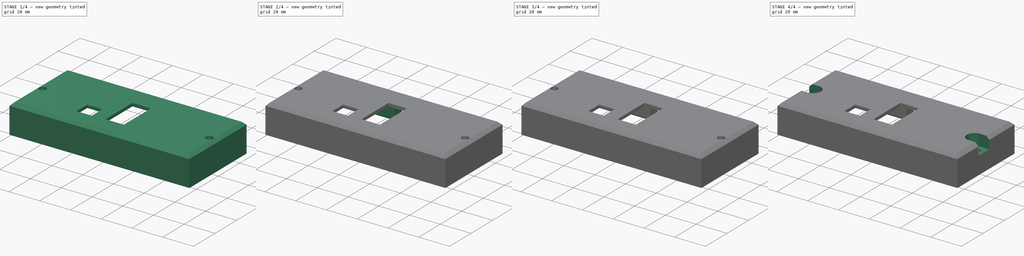
[diagram: build sequence overview — one tinted view per stage of 4, left to right]
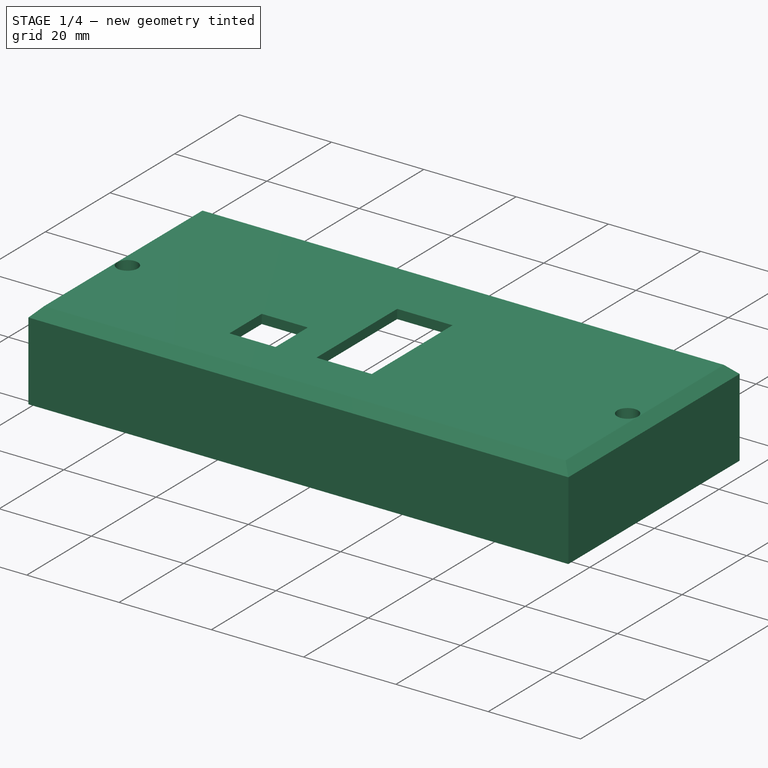
[diagram: stage 1 of 4 — iso view after this stage's code; geometry added in this stage tinted green]
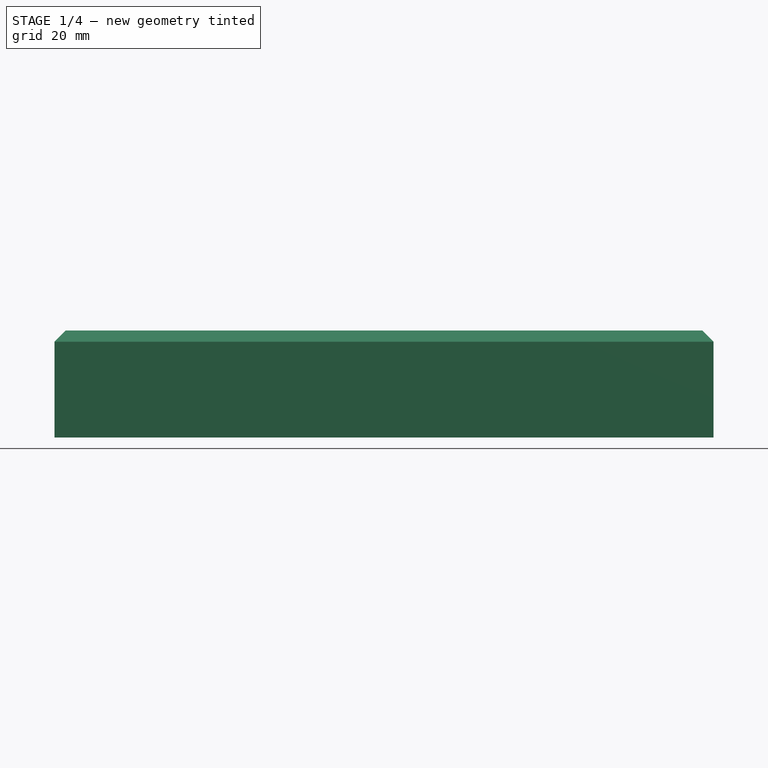
[diagram: stage 1 of 4 — front view after this stage's code; geometry added in this stage tinted green]
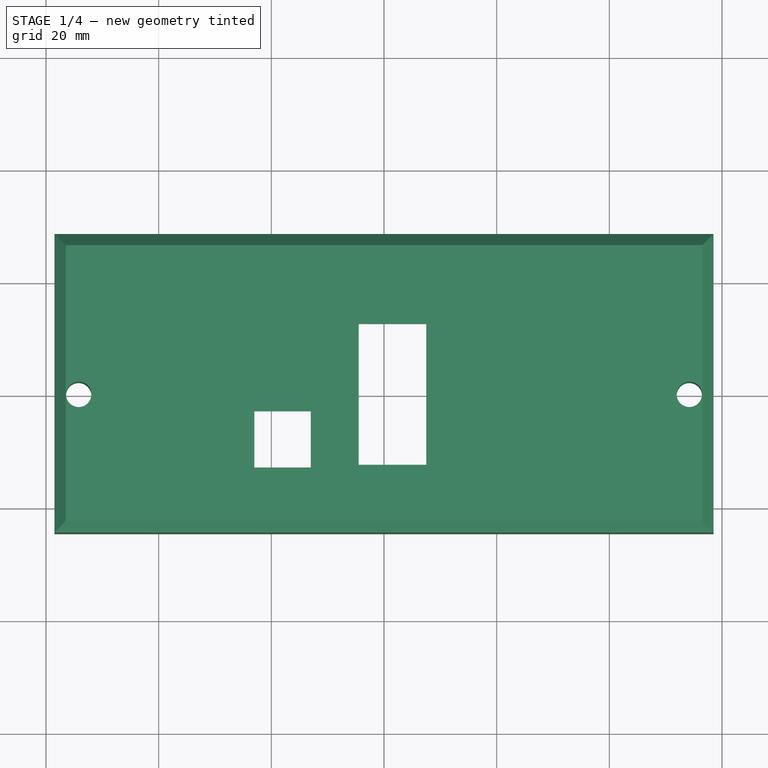
[diagram: stage 1 of 4 — top view after this stage's code; geometry added in this stage tinted green]
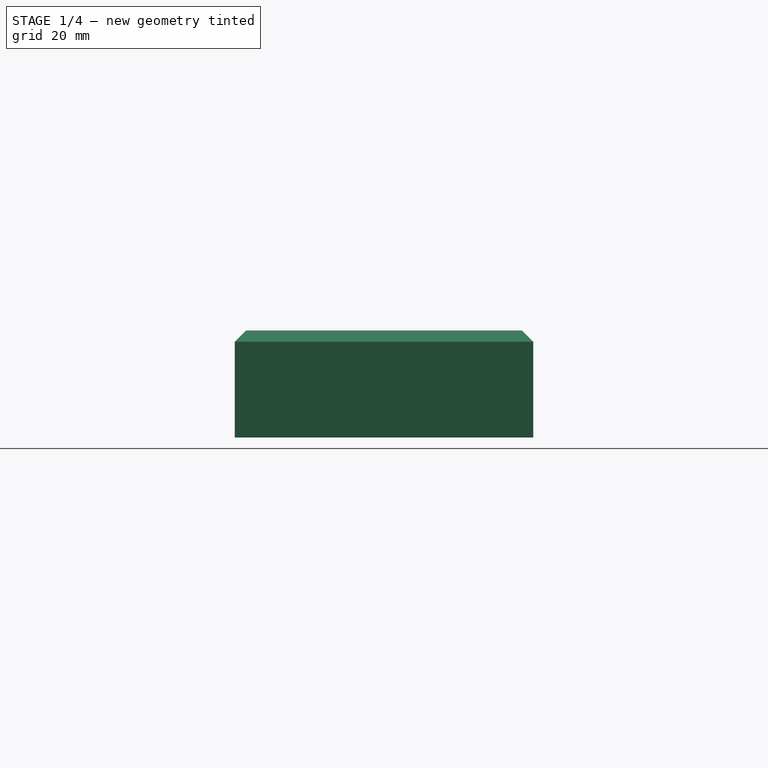
[diagram: stage 1 of 4 — right view after this stage's code; geometry added in this stage tinted green]
FCSTD DOCUMENT  (FreeCAD 0.18.4R)
Label: Domodisp - supporto
License: CreativeCommons Attribution-NonCommercial-ShareAlike
LicenseURL: http://creativecommons.org/licenses/by-nc-sa/4.0/
objects: Sketcher::SketchObject×10, PartDesign::Pad×6, PartDesign::Chamfer×5, PartDesign::Pocket×2, PartDesign::Hole×1, PartDesign::Body×1
note: 34 computed .brp shape members not serialized (recipe doc carries the construction recipe); baked Part::Feature solids carry a one-line shape summary decoded from their .brp

FEATURE [Sketcher::SketchObject] CopySketch  label="Fondo"
  sketch-geometry (14):
    g0: LineSegment StartX=-58.5 StartY=28.5 StartZ=0 EndX=58.5 EndY=28.5 EndZ=0
    g1: LineSegment StartX=58.5 StartY=28.5 StartZ=0 EndX=58.5 EndY=-24.5 EndZ=0
    g2: LineSegment StartX=58.5 StartY=-24.5 StartZ=0 EndX=-58.5 EndY=-24.5 EndZ=0
    g3: LineSegment StartX=-58.5 StartY=-24.5 StartZ=0 EndX=-58.5 EndY=28.5 EndZ=0
    g4: Circle CenterX=-54.2 CenterY=0 CenterZ=0 NormalX=0 NormalY=0 NormalZ=1 AngleXU=0 Radius=2.25
    g5: Circle CenterX=54.2 CenterY=0 CenterZ=0 NormalX=0 NormalY=0 NormalZ=1 AngleXU=0 Radius=2.25
    g6: LineSegment StartX=-4.5 StartY=12.5 StartZ=0 EndX=7.5 EndY=12.5 EndZ=0
    g7: LineSegment StartX=7.5 StartY=12.5 StartZ=0 EndX=7.5 EndY=-12.5 EndZ=0
    g8: LineSegment StartX=7.5 StartY=-12.5 StartZ=0 EndX=-4.5 EndY=-12.5 EndZ=0
    g9: LineSegment StartX=-4.5 StartY=-12.5 StartZ=0 EndX=-4.5 EndY=12.5 EndZ=0
    g10: LineSegment StartX=-23 StartY=-3 StartZ=0 EndX=-13 EndY=-3 EndZ=0
    g11: LineSegment StartX=-13 StartY=-3 StartZ=0 EndX=-13 EndY=-13 EndZ=0
    g12: LineSegment StartX=-13 StartY=-13 StartZ=0 EndX=-23 EndY=-13 EndZ=0
    g13: LineSegment StartX=-23 StartY=-13 StartZ=0 EndX=-23 EndY=-3 EndZ=0
  constraints (39):
    c: Coincident(g0,g1)
    c: Coincident(g1,g2)
    c: Coincident(g2,g3)
    c: Coincident(g3,g0)
    c: Horizontal(g2)
    c: Vertical(g1)
    c: Vertical(g3)
    c: DistanceX(g0,g0) = 117  'Larghezza'
    c: DistanceY(g1,g1) = 53  'Altezza'
    c: PointOnObject(g4,g-1)
    c: Symmetric(g5,g4,g-1)
    c: Equal(g5,g4)
    c: Diameter(g5) = 4.5
    c: Coincident(g6,g7)
    c: Coincident(g7,g8)
    c: Coincident(g8,g9)
    c: Coincident(g9,g6)
    c: Horizontal(g6)
    c: Horizontal(g8)
    c: Vertical(g9)
    c: DistanceY(g7,g7) = 25
    c: DistanceX(g6,g6) = 12
    c: DistanceX(g4,g5) = 108.4  'InterasseFori'
    c: Coincident(g10,g11)
    c: Coincident(g11,g12)
    c: Coincident(g12,g13)
    c: Coincident(g13,g10)
    c: Horizontal(g10)
    c: Horizontal(g12)
    c: Vertical(g11)
    c: Vertical(g13)
    c: DistanceX(g11,g-1) = 13
    c: DistanceY(g13,g13) = 10
    c: DistanceX(g12,g12) = 10
    c: DistanceY(g1,g-1) = 24.5  'OffsetBordoChiuso'
    c: Symmetric(g0,g0,g-2)
    c: Symmetric(g6,g7,g-1)
    c: DistanceX(g-1,g7) = 7.5
    c: DistanceY(g10,g-1) = 3
FEATURE [PartDesign::Pad] Pad  label="PadFondo"
  Length = 19
  Length2 = 100
  Profile = -> CopySketch
  Refine = true
  Type = 0
FEATURE [Sketcher::SketchObject] Sketch
  MapMode = 5
  Placement = pos=(0,0,0) rot=(1,0,0;3.14159rad)
  Support = -> [Pad]
  sketch-geometry (9):
    g0: LineSegment StartX=-51 StartY=22.5 StartZ=0 EndX=39 EndY=22.5 EndZ=0
    g1: LineSegment [constr] StartX=39 StartY=22.5 StartZ=0 EndX=39 EndY=-30.5 EndZ=0
    g2: LineSegment StartX=39 StartY=-30.5 StartZ=0 EndX=-51 EndY=-30.5 EndZ=0
    g3: LineSegment StartX=-51 StartY=-30.5 StartZ=0 EndX=-51 EndY=22.5 EndZ=0
    g4: LineSegment StartX=39 StartY=22.5 StartZ=0 EndX=39 EndY=3 EndZ=0
    g5: LineSegment StartX=39 StartY=3 StartZ=0 EndX=41.5 EndY=3 EndZ=0
    g6: LineSegment StartX=41.5 StartY=-17 StartZ=0 EndX=39 EndY=-17 EndZ=0
    g7: LineSegment StartX=39 StartY=-17 StartZ=0 EndX=39 EndY=-30.5 EndZ=0
    g8: LineSegment StartX=41.5 StartY=3 StartZ=0 EndX=41.5 EndY=-17 EndZ=0
  constraints (26):
    c: Coincident(g0,g1)
    c: Coincident(g1,g2)
    c: Coincident(g2,g3)
    c: Coincident(g3,g0)
    c: Horizontal(g0)
    c: Horizontal(g2)
    c: Vertical(g1)
    c: Vertical(g3)
    c: DistanceX(g0,g0) = 90
    c: DistanceY(g1,g1) = 53
    c: DistanceY(g-1,g0) = 22.5
    c: DistanceX(g-1,g0) = 39
    c: Coincident(g0,g4)
    c: PointOnObject(g4,g1)
    c: Coincident(g4,g5)
    c: Horizontal(g5)
    c: PointOnObject(g6,g1)
    c: Horizontal(g6)
    c: Coincident(g6,g7)
    c: Coincident(g7,g2)
    c: Equal(g5,g6)
    c: Coincident(g8,g5)
    c: Coincident(g8,g6)
    c: DistanceX(g6,g6) = 2.5
    c: DistanceY(g8,g8) = 20
    c: DistanceY(g-1,g4) = 3
FEATURE [PartDesign::Chamfer] Chamfer001
  Base = -> Pad [Edge10,Edge7,Edge4,Edge12]
  BaseFeature = -> Pad
  Size = 2
FEATURE [PartDesign::Pocket] Pocket  label="Incastro"
  BaseFeature = -> Chamfer001
  Length = 17
  Length2 = 100
  Profile = -> Sketch
  Refine = true
  Type = 0
FEATURE [Sketcher::SketchObject] Sketch001
  MapMode = 5
  Placement = pos=(0,0,0) rot=(1,0,0;3.14159rad)
  Support = -> [Pocket]
  sketch-geometry (2):
    g0: Circle CenterX=-54.2 CenterY=0 CenterZ=0 NormalX=0 NormalY=0 NormalZ=1 AngleXU=0 Radius=4
    g1: Circle CenterX=54.2 CenterY=0 CenterZ=0 NormalX=0 NormalY=0 NormalZ=1 AngleXU=0 Radius=4
  constraints (5):
    c: PointOnObject(g0,g-1)
    c: Symmetric(g0,g1,g-1)
    c: DistanceX(g0,g1) = 108.4
    c: Equal(g1,g0)
    c: Diameter(g1) = 8
FEATURE [PartDesign::Hole] Hole  label="Scassi teste viti"
  BaseFeature = -> Pocket
  Depth = 5
  DepthType = 0
  Diameter = 8
  DrillPoint = 1
  DrillPointAngle = 118
  HoleCutCountersinkAngle = 90
  HoleCutDepth = 0
  HoleCutDiameter = 0
  HoleCutType = 0
  ModelActualThread = false
  Profile = -> Sketch001
  Refine = true
  Tapered = false
  TaperedAngle = 90
  ThreadAngle = 0
  ThreadClass = 0
  ThreadCutOffInner = 0
  ThreadCutOffOuter = 0
  ThreadDirection = 0
  ThreadFit = 0
  ThreadPitch = 0
  ThreadSize = 0
  ThreadType = 0
  Threaded = false
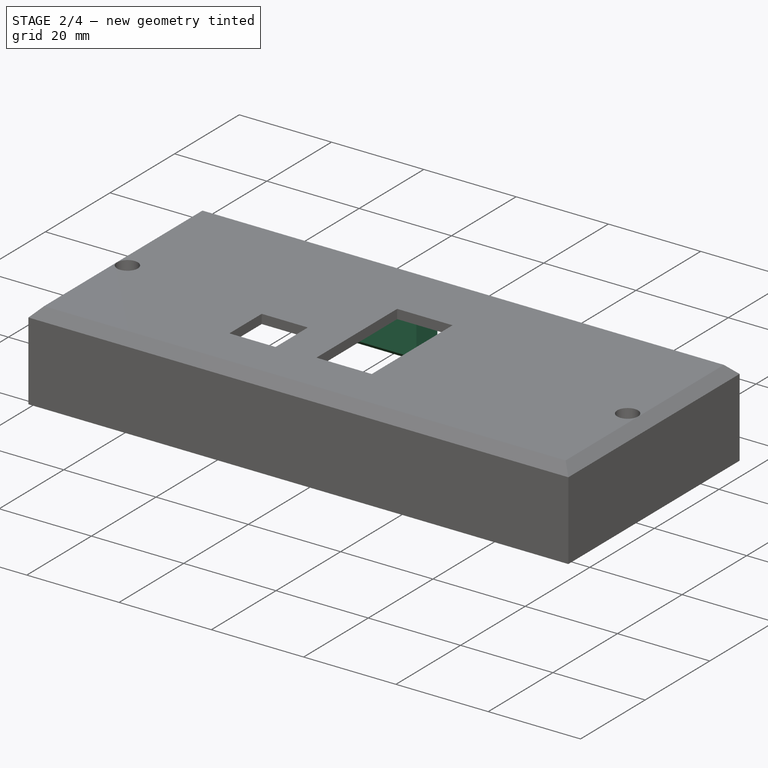
[diagram: stage 2 of 4 — iso view after this stage's code; geometry added in this stage tinted green]
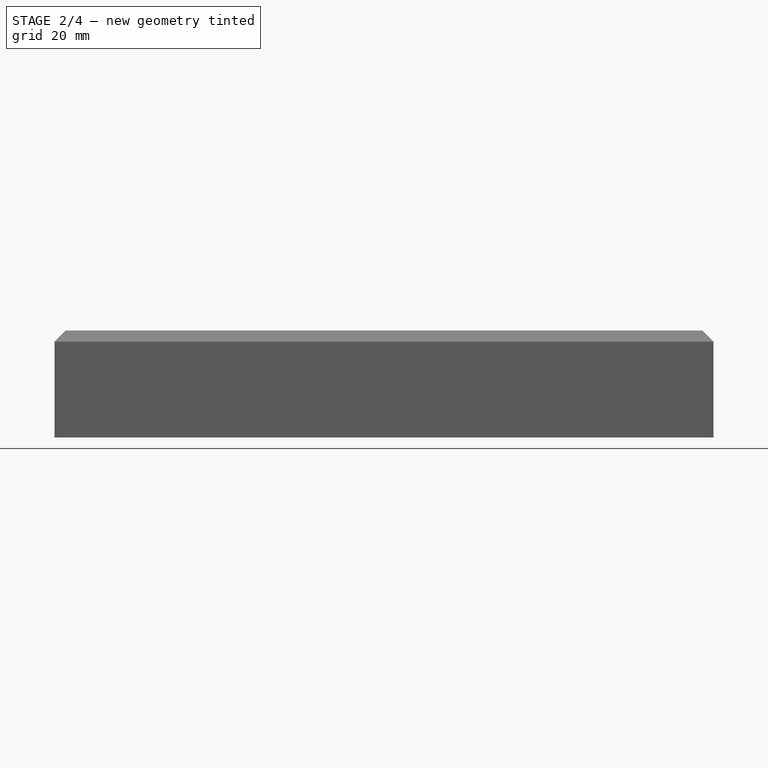
[diagram: stage 2 of 4 — front view after this stage's code; geometry added in this stage tinted green]
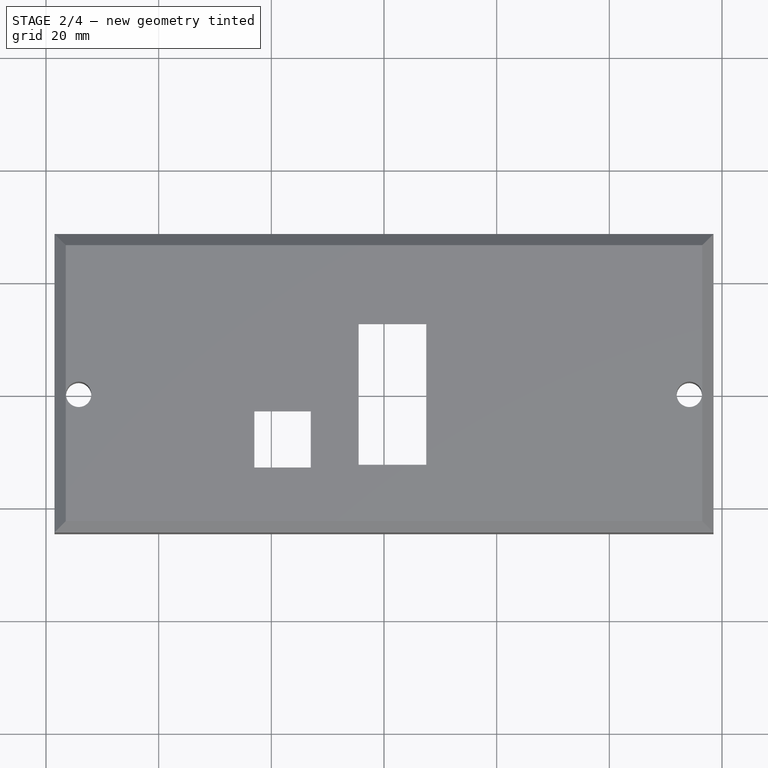
[diagram: stage 2 of 4 — top view after this stage's code; geometry added in this stage tinted green]
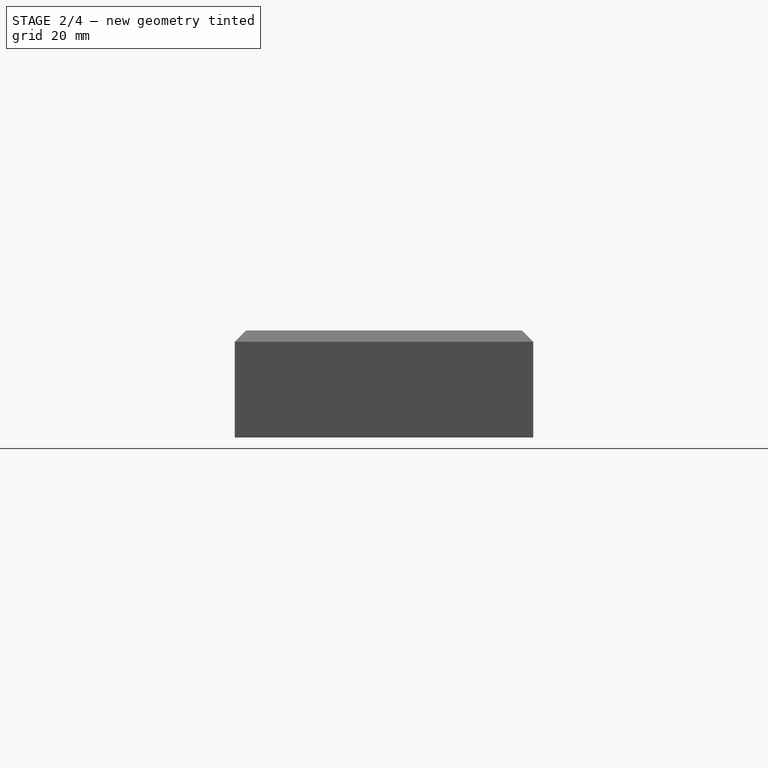
[diagram: stage 2 of 4 — right view after this stage's code; geometry added in this stage tinted green]
FEATURE [Sketcher::SketchObject] Sketch002
  MapMode = 5
  Placement = pos=(0,0,17) rot=(1,0,0;3.14159rad)
  Support = -> [Hole]
  sketch-geometry (4):
    g0: LineSegment StartX=-24 StartY=-22 StartZ=0 EndX=-7 EndY=-22 EndZ=0
    g1: LineSegment StartX=-7 StartY=-22 StartZ=0 EndX=-7 EndY=-28.5 EndZ=0
    g2: LineSegment StartX=-7 StartY=-28.5 StartZ=0 EndX=-24 EndY=-28.5 EndZ=0
    g3: LineSegment StartX=-24 StartY=-28.5 StartZ=0 EndX=-24 EndY=-22 EndZ=0
  constraints (12):
    c: Coincident(g0,g1)
    c: Coincident(g1,g2)
    c: Coincident(g2,g3)
    c: Coincident(g3,g0)
    c: Horizontal(g0)
    c: Horizontal(g2)
    c: Vertical(g1)
    c: Vertical(g3)
    c: DistanceX(g1,g-1) = 7
    c: DistanceY(g1,g-1) = 28.5
    c: DistanceY(g3,g3) = 6.5
    c: DistanceX(g2,g2) = 17
FEATURE [PartDesign::Pad] Pad001  label="Fermo TH"
  BaseFeature = -> Hole
  Length = 13
  Length2 = 100
  Profile = -> Sketch002
  Refine = true
  Type = 0
FEATURE [PartDesign::Chamfer] Chamfer  label="Smussi fermo TH"
  Base = -> Pad001 [Face36]
  BaseFeature = -> Pad001
  Size = 1
FEATURE [Sketcher::SketchObject] Sketch003
  MapMode = 5
  Placement = pos=(0,0,0) rot=(1,0,0;3.14159rad)
  Support = -> [Chamfer]
  sketch-geometry (6):
    g0: LineSegment StartX=39 StartY=-16 StartZ=0 EndX=40.5 EndY=-16 EndZ=0
    g1: LineSegment StartX=40.5 StartY=2 StartZ=0 EndX=39 EndY=2 EndZ=0
    g2: GeomPoint X=39 Y=-7 Z=0
    g3: LineSegment StartX=39 StartY=2 StartZ=0 EndX=39 EndY=-7 EndZ=0
    g4: LineSegment StartX=39 StartY=-7 StartZ=0 EndX=39 EndY=-16 EndZ=0
    g5: LineSegment StartX=40.5 StartY=-16 StartZ=0 EndX=40.5 EndY=2 EndZ=0
  constraints (16):
    c: Horizontal(g0)
    c: DistanceY(g0,g1) = 18
    c: DistanceY(g2,g-1) = 7
    c: DistanceX(g1,g1) = 1.5
    c: Coincident(g3,g2)
    c: Vertical(g3)
    c: Coincident(g4,g2)
    c: Coincident(g4,g0)
    c: Vertical(g4)
    c: Coincident(g5,g0)
    c: Coincident(g5,g1)
    c: Vertical(g5)
    c: Coincident(g1,g3)
    c: DistanceX(g-1,g1) = 39
    c: Equal(g3,g4)
    c: Horizontal(g1)
FEATURE [PartDesign::Pad] Pad002  label="Molla incastro"
  BaseFeature = -> Chamfer
  Length = 17
  Length2 = 8
  Profile = -> Sketch003
  Refine = true
  Reversed = true
  Type = 0
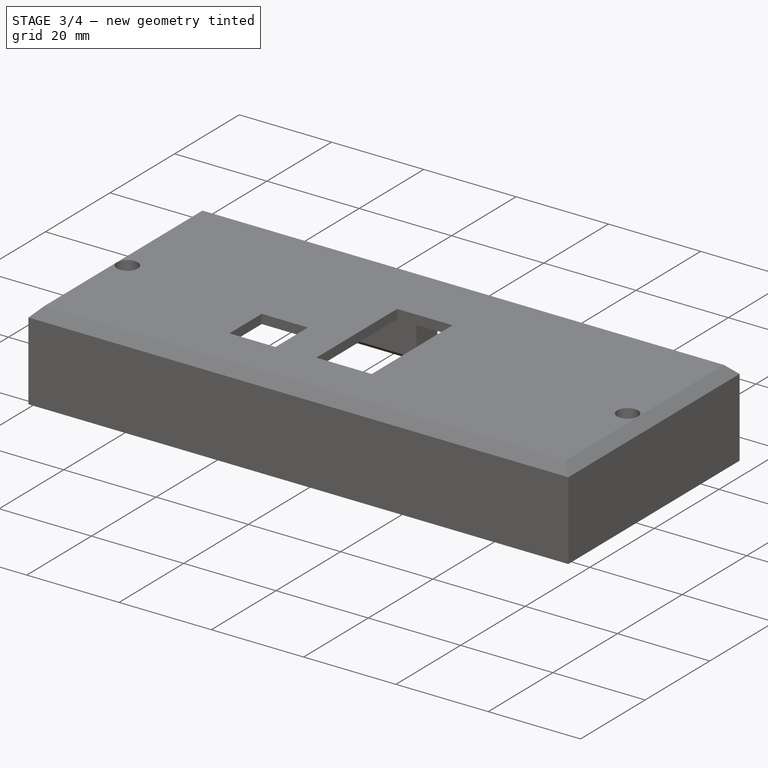
[diagram: stage 3 of 4 — iso view after this stage's code; geometry added in this stage tinted green]
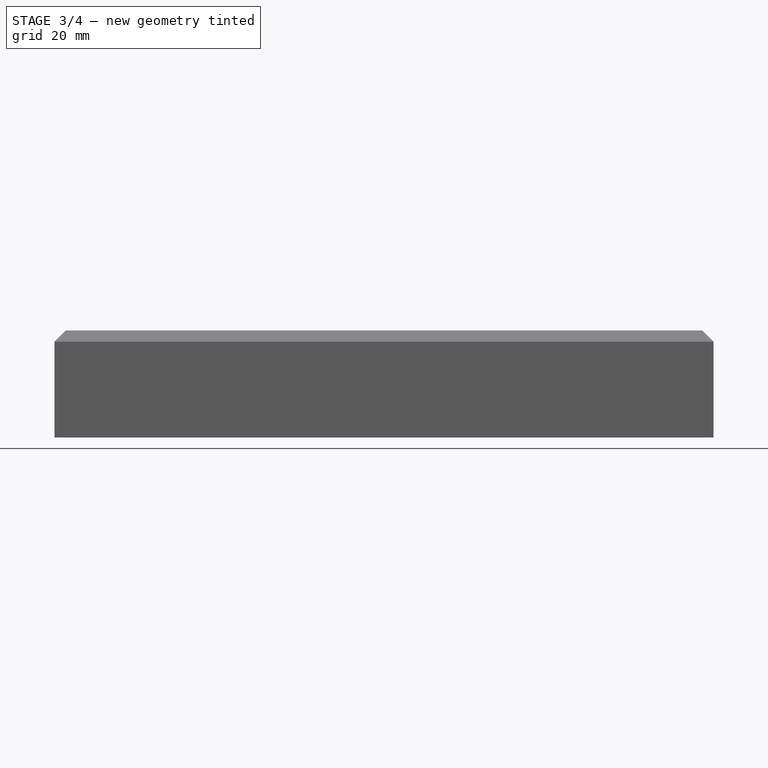
[diagram: stage 3 of 4 — front view after this stage's code; geometry added in this stage tinted green]
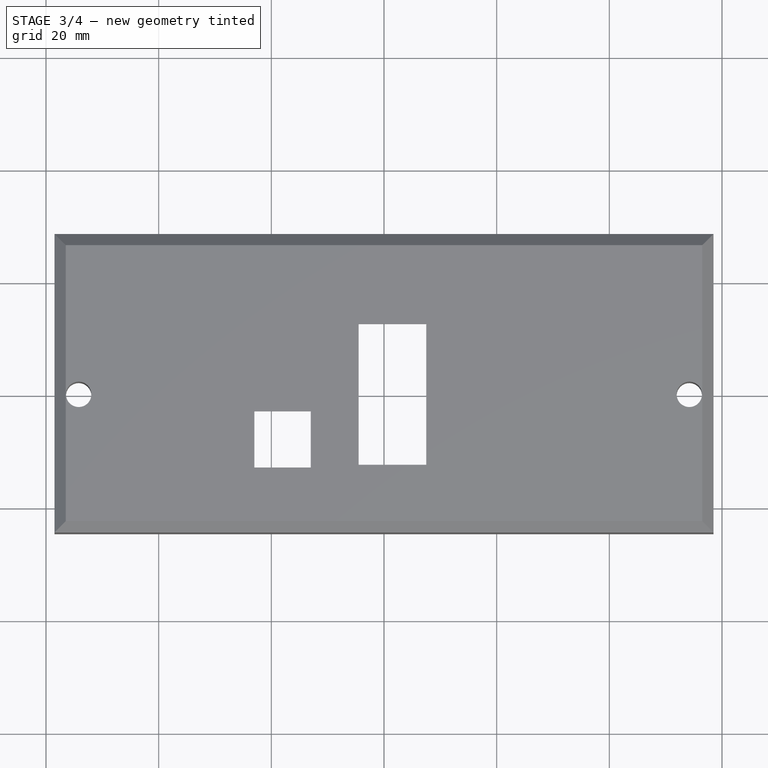
[diagram: stage 3 of 4 — top view after this stage's code; geometry added in this stage tinted green]
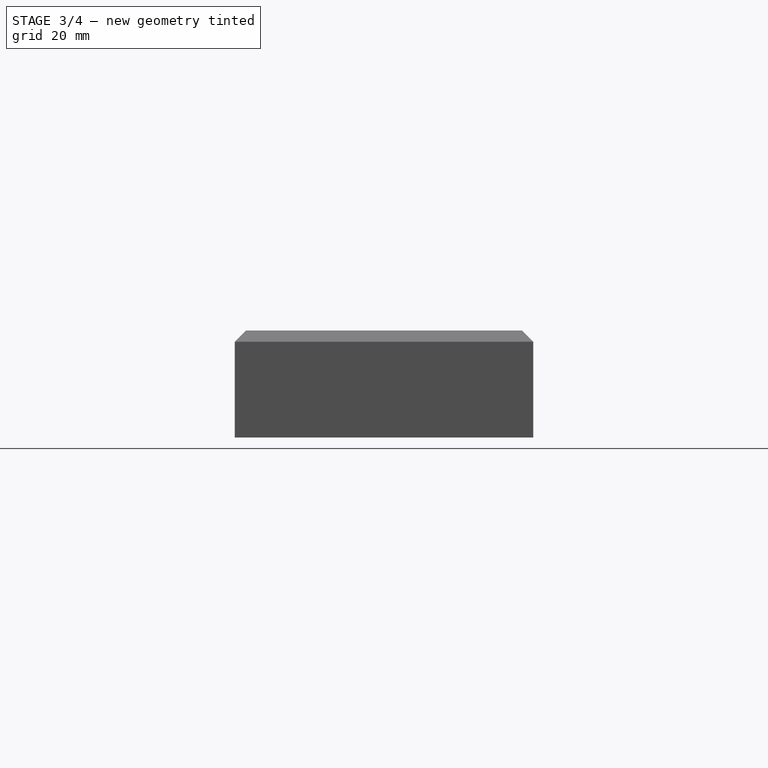
[diagram: stage 3 of 4 — right view after this stage's code; geometry added in this stage tinted green]
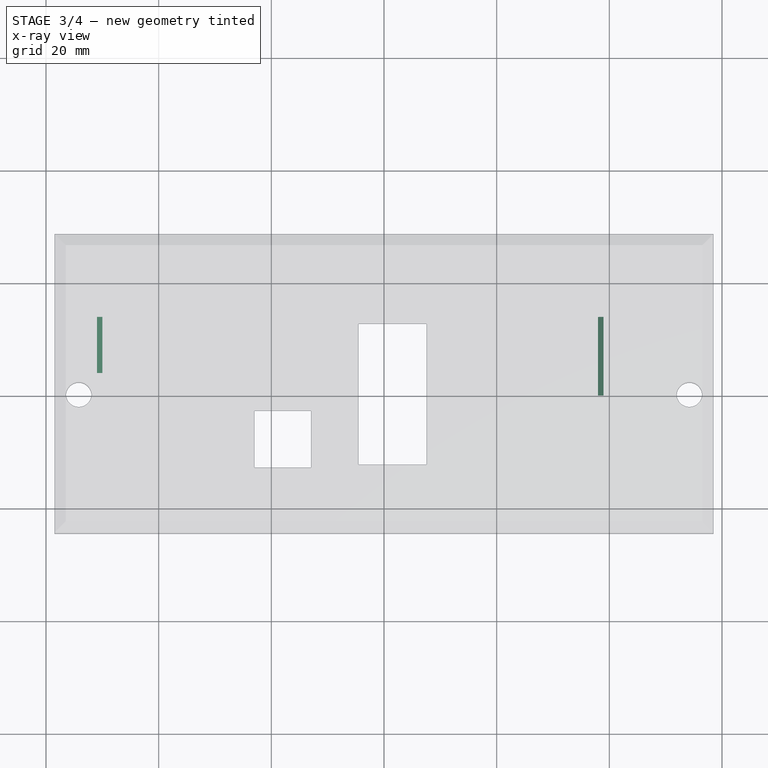
[diagram: stage 3 of 4 — x-ray composite at the top view; earlier geometry ghosted, this stage's added geometry solid]
FEATURE [Sketcher::SketchObject] Sketch004
  MapMode = 5
  Placement = pos=(39,0,0) rot=(0.57735,-0.57735,-0.57735;2.0944rad)
  Support = -> [Pad002]
  sketch-geometry (4):
    g0: LineSegment StartX=-14 StartY=5 StartZ=0 EndX=0 EndY=5 EndZ=0
    g1: LineSegment StartX=0 StartY=5 StartZ=0 EndX=0 EndY=3 EndZ=0
    g2: LineSegment StartX=0 StartY=3 StartZ=0 EndX=-14 EndY=3 EndZ=0
    g3: LineSegment StartX=-14 StartY=3 StartZ=0 EndX=-14 EndY=5 EndZ=0
  constraints (12):
    c: Coincident(g0,g1)
    c: Coincident(g1,g2)
    c: Coincident(g2,g3)
    c: Coincident(g3,g0)
    c: Horizontal(g0)
    c: Horizontal(g2)
    c: Vertical(g1)
    c: Vertical(g3)
    c: PointOnObject(g1,g-2)
    c: DistanceY(g-1,g1) = 3
    c: DistanceY(g1,g1) = 2
    c: DistanceX(g2,g2) = 14
FEATURE [PartDesign::Pad] Pad003  label="Incastro su molla"
  BaseFeature = -> Pad002
  Length = 1
  Length2 = 100
  Profile = -> Sketch004
  Refine = true
  Type = 0
FEATURE [PartDesign::Chamfer] Chamfer002  label="Scassi incastro molla"
  Base = -> Pad003 [Edge129,Edge132]
  BaseFeature = -> Pad003
  Size = 0.99
FEATURE [Sketcher::SketchObject] Sketch005
  MapMode = 5
  Placement = pos=(-51,0,0) rot=(0.57735,0.57735,0.57735;2.0944rad)
  Support = -> [Chamfer002]
  sketch-geometry (4):
    g0: LineSegment StartX=4 StartY=5 StartZ=0 EndX=14 EndY=5 EndZ=0
    g1: LineSegment StartX=14 StartY=5 StartZ=0 EndX=14 EndY=3 EndZ=0
    g2: LineSegment StartX=14 StartY=3 StartZ=0 EndX=4 EndY=3 EndZ=0
    g3: LineSegment StartX=4 StartY=3 StartZ=0 EndX=4 EndY=5 EndZ=0
  constraints (12):
    c: Coincident(g0,g1)
    c: Coincident(g1,g2)
    c: Coincident(g2,g3)
    c: Coincident(g3,g0)
    c: Horizontal(g0)
    c: Horizontal(g2)
    c: Vertical(g1)
    c: Vertical(g3)
    c: DistanceX(g-1,g1) = 14
    c: DistanceY(g-1,g2) = 3
    c: DistanceY(g3,g3) = 2
    c: DistanceX(g-1,g2) = 4
FEATURE [PartDesign::Pad] Pad004  label="Incastro fisso"
  BaseFeature = -> Chamfer002
  Length = 1
  Length2 = 100
  Profile = -> Sketch005
  Refine = true
  Type = 0
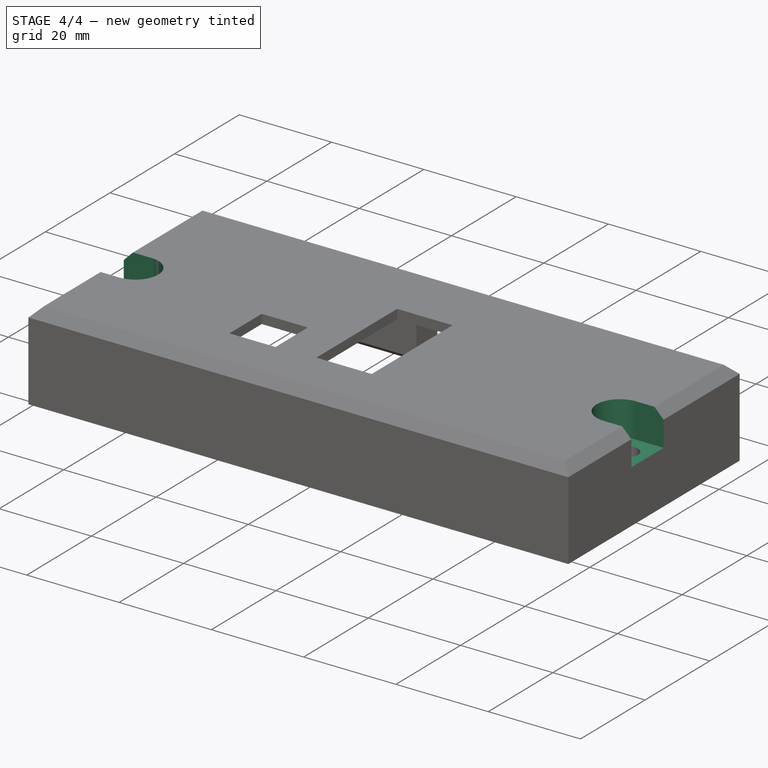
[diagram: stage 4 of 4 — iso view after this stage's code; geometry added in this stage tinted green]
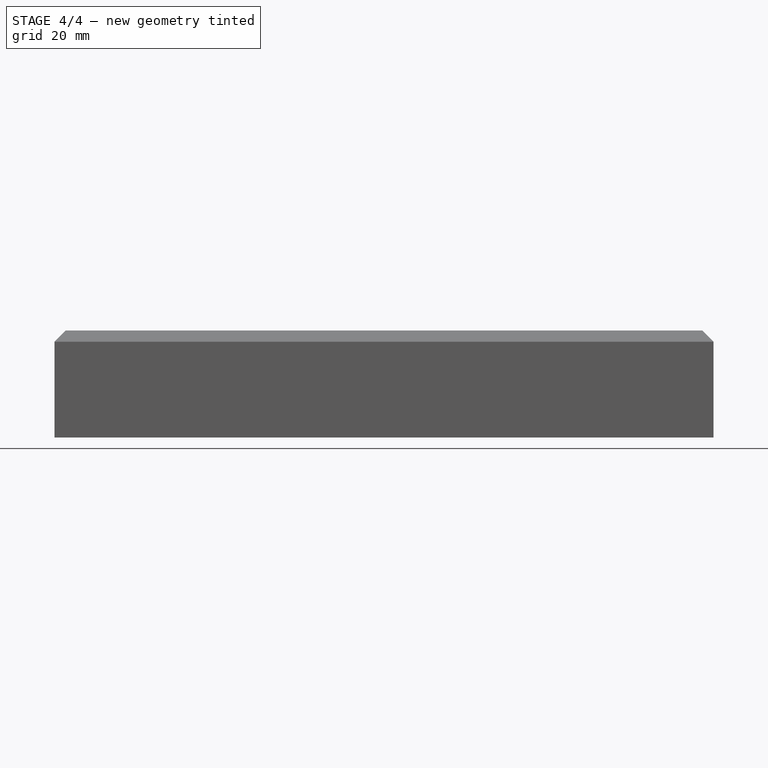
[diagram: stage 4 of 4 — front view after this stage's code; geometry added in this stage tinted green]
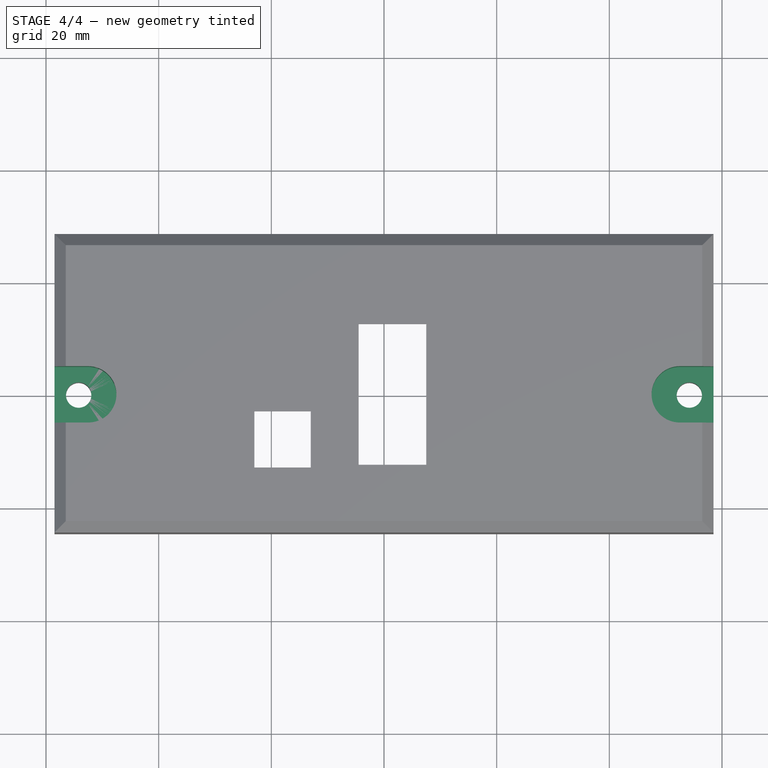
[diagram: stage 4 of 4 — top view after this stage's code; geometry added in this stage tinted green]
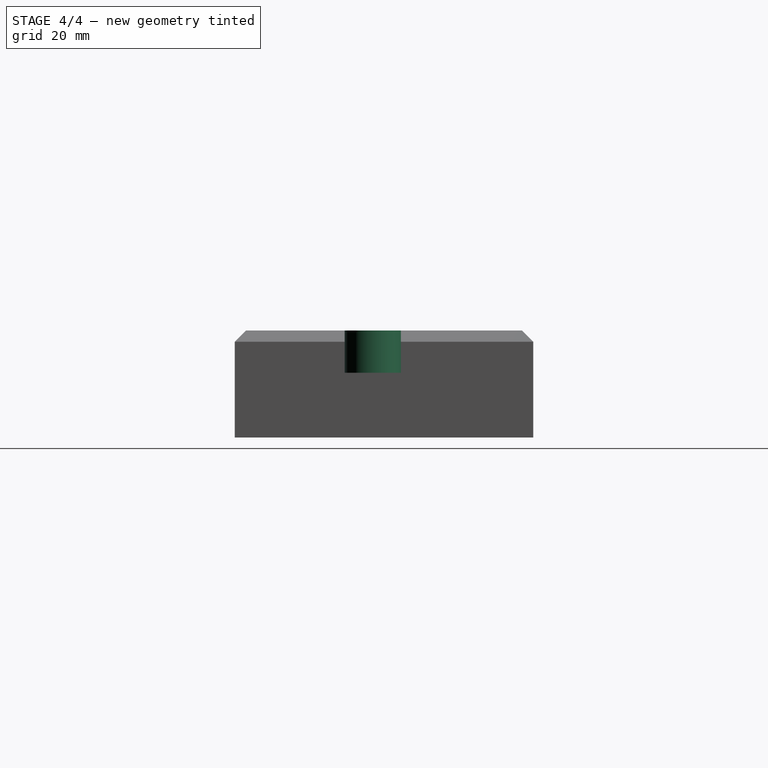
[diagram: stage 4 of 4 — right view after this stage's code; geometry added in this stage tinted green]
FEATURE [PartDesign::Chamfer] Chamfer003  label="Scassi incastro fisso"
  Base = -> Pad004 [Edge132,Edge135]
  BaseFeature = -> Pad004
  Size = 0.99
FEATURE [PartDesign::Chamfer] Chamfer004
  Base = -> Chamfer003 [Edge12,Edge19,Edge35,Edge34,Edge30,Edge98]
  BaseFeature = -> Chamfer003
  Size = 1.4
FEATURE [Sketcher::SketchObject] Sketch006
  MapMode = 5
  Placement = pos=(0,0,17) rot=(1,0,0;3.14159rad)
  Support = -> [Chamfer004]
  sketch-geometry (13):
    g0: LineSegment StartX=-51 StartY=22.5 StartZ=0 EndX=-44.5 EndY=22.5 EndZ=0
    g1: LineSegment StartX=-51 StartY=-28.5 StartZ=0 EndX=-51 EndY=22.5 EndZ=0
    g2: LineSegment StartX=33 StartY=22.5 StartZ=0 EndX=39 EndY=22.5 EndZ=0
    g3: LineSegment [constr] StartX=-44.5 StartY=22.5 StartZ=0 EndX=33 EndY=22.5 EndZ=0
    g4: LineSegment StartX=-44.5 StartY=-26.9 StartZ=0 EndX=33 EndY=-26.9 EndZ=0
    g5: LineSegment StartX=-44.5 StartY=-26.9 StartZ=0 EndX=-44.5 EndY=22.5 EndZ=0
    g6: LineSegment StartX=39 StartY=-28.5 StartZ=0 EndX=-51 EndY=-28.5 EndZ=0
    g7: LineSegment StartX=33 StartY=22.5 StartZ=0 EndX=33 EndY=-26.9 EndZ=0
    g8: LineSegment StartX=39 StartY=22.5 StartZ=0 EndX=39 EndY=3 EndZ=0
    g9: LineSegment StartX=39 StartY=3 StartZ=0 EndX=38 EndY=3 EndZ=0
    g10: LineSegment StartX=38 StartY=3 StartZ=0 EndX=38 EndY=-17 EndZ=0
    g11: LineSegment StartX=38 StartY=-17 StartZ=0 EndX=39 EndY=-17 EndZ=0
    g12: LineSegment StartX=39 StartY=-17 StartZ=0 EndX=39 EndY=-28.5 EndZ=0
  constraints (38):
    c: Coincident(g1,g0)
    c: Horizontal(g0)
    c: Vertical(g1)
    c: DistanceX(g0,g-1) = 51
    c: DistanceY(g1,g1) = 51
    c: DistanceY(g-1,g0) = 22.5
    c: DistanceX(g0,g0) = 6.5
    c: Horizontal(g2)
    c: DistanceX(g-1,g2) = 39
    c: DistanceX(g2,g2) = 6
    c: Coincident(g3,g0)
    c: Coincident(g3,g2)
    c: Horizontal(g3)
    c: Horizontal(g4)
    c: Coincident(g5,g4)
    c: Coincident(g5,g0)
    c: Vertical(g5)
    c: Coincident(g6,g1)
    c: Horizontal(g6)
    c: Coincident(g7,g2)
    c: Coincident(g7,g4)
    c: Vertical(g7)
    c: DistanceY(g1,g4) = 1.6
    c: Coincident(g2,g8)
    c: Vertical(g8)
    c: Coincident(g8,g9)
    c: Horizontal(g9)
    c: Coincident(g9,g10)
    c: Vertical(g10)
    c: Coincident(g10,g11)
    c: Horizontal(g11)
    c: Coincident(g11,g12)
    c: Coincident(g12,g6)
    c: Vertical(g12)
    c: Equal(g9,g11)
    c: DistanceY(g10,g10) = 20
    c: DistanceY(g-1,g9) = 3
    c: DistanceX(g9,g9) = 1
FEATURE [PartDesign::Pad] Pad005  label="Fermi PCB"
  BaseFeature = -> Chamfer004
  Length = 6.5
  Length2 = 100
  Profile = -> Sketch006
  Refine = true
  Type = 0
FEATURE [Sketcher::SketchObject] Sketch007
  MapMode = 5
  Placement = pos=(0,0,19) rot=(0,0,1;0rad)
  Support = -> [Pad005]
  expr: Constraints[19] = Fondo.Constraints.Larghezza
  sketch-geometry (10):
    g0: LineSegment StartX=-58.5 StartY=5 StartZ=0 EndX=-52.5 EndY=5 EndZ=0
    g1: LineSegment [constr] StartX=-52.5 StartY=5 StartZ=0 EndX=-52.5 EndY=-5 EndZ=0
    g2: LineSegment StartX=-52.5 StartY=-5 StartZ=0 EndX=-58.5 EndY=-5 EndZ=0
    g3: LineSegment StartX=-58.5 StartY=-5 StartZ=0 EndX=-58.5 EndY=5 EndZ=0
    g4: LineSegment StartX=58.5 StartY=5 StartZ=0 EndX=52.5 EndY=5 EndZ=0
    g5: LineSegment [constr] StartX=52.5 StartY=5 StartZ=0 EndX=52.5 EndY=-5 EndZ=0
    g6: LineSegment StartX=52.5 StartY=-5 StartZ=0 EndX=58.5 EndY=-5 EndZ=0
    g7: LineSegment StartX=58.5 StartY=-5 StartZ=0 EndX=58.5 EndY=5 EndZ=0
    g8: ArcOfCircle CenterX=52.5 CenterY=0 CenterZ=0 NormalX=0 NormalY=0 NormalZ=1 AngleXU=0 Radius=5 StartAngle=1.5708 EndAngle=4.71239
    g9: ArcOfCircle CenterX=-52.5 CenterY=4e-16 CenterZ=0 NormalX=0 NormalY=0 NormalZ=1 AngleXU=0 Radius=5 StartAngle=4.71239 EndAngle=7.85398
  constraints (28):
    c: Coincident(g0,g1)
    c: Coincident(g1,g2)
    c: Coincident(g2,g3)
    c: Coincident(g3,g0)
    c: Horizontal(g0)
    c: Horizontal(g2)
    c: Vertical(g1)
    c: Vertical(g3)
    c: Coincident(g4,g5)
    c: Coincident(g5,g6)
    c: Coincident(g6,g7)
    c: Coincident(g7,g4)
    c: Horizontal(g4)
    c: Horizontal(g6)
    c: Vertical(g5)
    c: Symmetric(g0,g4,g-2)
    c: Equal(g7,g3)
    c: DistanceY(g7,g7) = 10
    c: Symmetric(g4,g6,g-1)
    c: DistanceX(g2,g6) = 117
    c: DistanceX(g6,g6) = 6
    c: PointOnObject(g8,g5)
    c: Coincident(g8,g4)
    c: Coincident(g8,g6)
    c: Equal(g6,g2)
    c: PointOnObject(g9,g1)
    c: Coincident(g9,g0)
    c: Coincident(g9,g2)
FEATURE [PartDesign::Pocket] Pocket001  label="Scassi supporti scatola"
  BaseFeature = -> Pad005
  Length = 7.5
  Length2 = 100
  Profile = -> Sketch007
  Refine = true
  Type = 0
FEATURE [Sketcher::SketchObject] Sketch008
  MapMode = 5
  Placement = pos=(0,0,0) rot=(1,0,0;3.14159rad)
  Support = -> [Pocket001]
  expr: Constraints[21] = Fondo.Constraints.OffsetBordoChiuso
  expr: Constraints[19] = Fondo.Constraints.Altezza
  expr: Constraints[16] = Fondo.Constraints.Larghezza
  sketch-geometry (8):
    g0: LineSegment StartX=-64.5 StartY=24.5 StartZ=0 EndX=-58.5 EndY=24.5 EndZ=0
    g1: LineSegment StartX=-58.5 StartY=24.5 StartZ=0 EndX=-58.5 EndY=-28.5 EndZ=0
    g2: LineSegment StartX=-58.5 StartY=-28.5 StartZ=0 EndX=-64.5 EndY=-28.5 EndZ=0
    g3: LineSegment StartX=-64.5 StartY=-28.5 StartZ=0 EndX=-64.5 EndY=24.5 EndZ=0
    g4: LineSegment StartX=58.5 StartY=24.5 StartZ=0 EndX=64.5 EndY=24.5 EndZ=0
    g5: LineSegment StartX=64.5 StartY=24.5 StartZ=0 EndX=64.5 EndY=-28.5 EndZ=0
    g6: LineSegment StartX=64.5 StartY=-28.5 StartZ=0 EndX=58.5 EndY=-28.5 EndZ=0
    g7: LineSegment StartX=58.5 StartY=-28.5 StartZ=0 EndX=58.5 EndY=24.5 EndZ=0
  constraints (23):
    c: Coincident(g0,g1)
    c: Coincident(g1,g2)
    c: Coincident(g2,g3)
    c: Coincident(g3,g0)
    c: Horizontal(g0)
    c: Horizontal(g2)
    c: Vertical(g1)
    c: Vertical(g3)
    c: Coincident(g4,g5)
    c: Coincident(g5,g6)
    c: Coincident(g6,g7)
    c: Coincident(g7,g4)
    c: Horizontal(g4)
    c: Horizontal(g6)
    c: Vertical(g5)
    c: Vertical(g7)
    c: DistanceX(g1,g6) = 117
    c: Equal(g2,g6)
    c: DistanceX(g6,g6) = 6
    c: DistanceY(g3,g3) = 53
    c: Equal(g3,g5)
    c: DistanceY(g-1,g0) = 24.5
    c: Symmetric(g0,g4,g-2)
FEATURE [PartDesign::Body] Body
  Group = -> [Pad,Sketch,Chamfer001,Pocket,Sketch001,Hole,Sketch002,Pad001,Chamfer,Sketch003,Pad002,Sketch004,Pad003,Chamfer002,Sketch005,Pad004,Chamfer003,Chamfer004,Sketch006,Pad005,Sketch007,Pocket001,Sketch008]
  Origin = -> Origin
  Tip = -> Pocket001
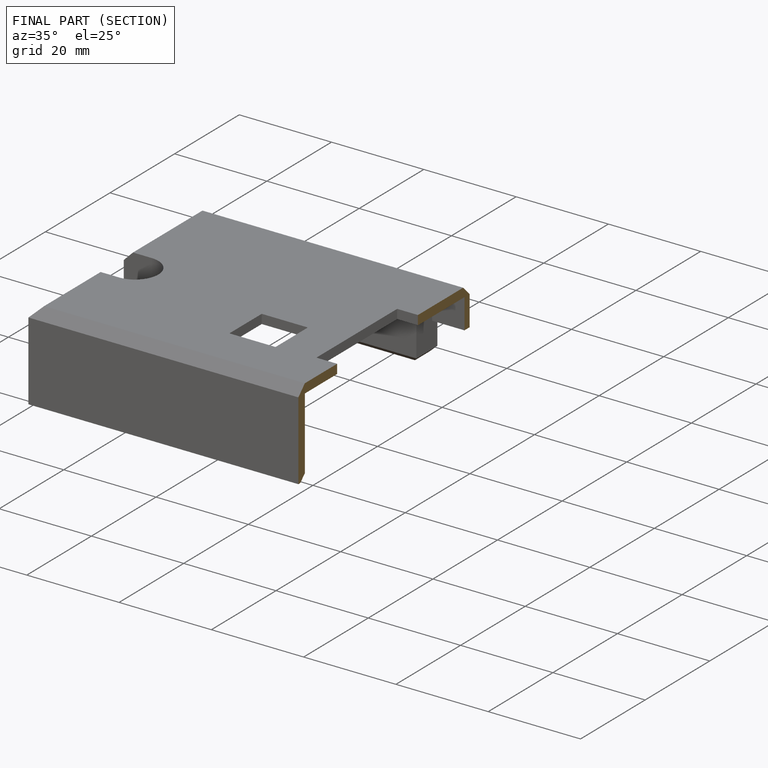
[diagram: finished part — half-section view (interior)]
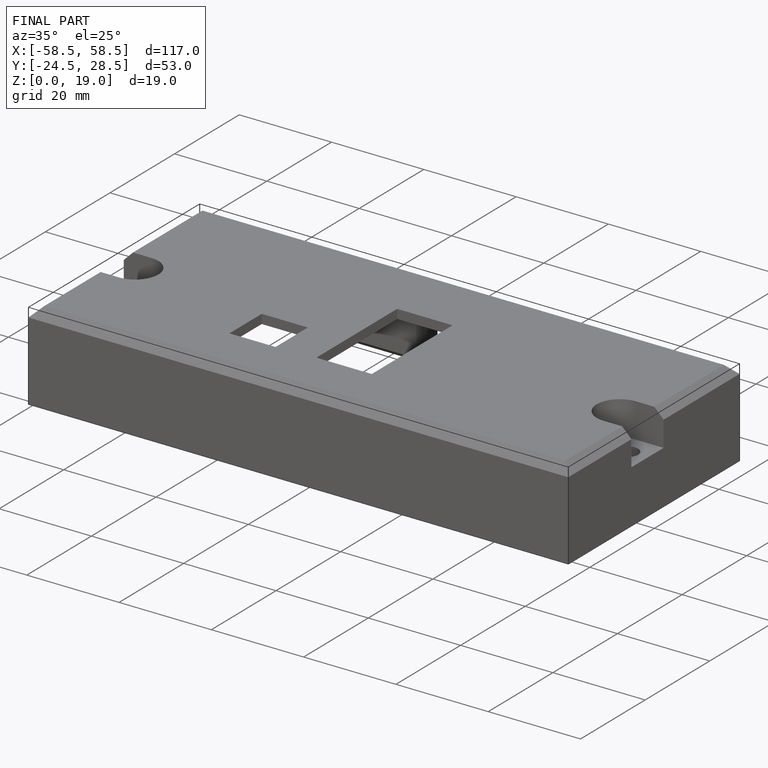
[diagram: finished part — iso view with bounding-box wireframe]
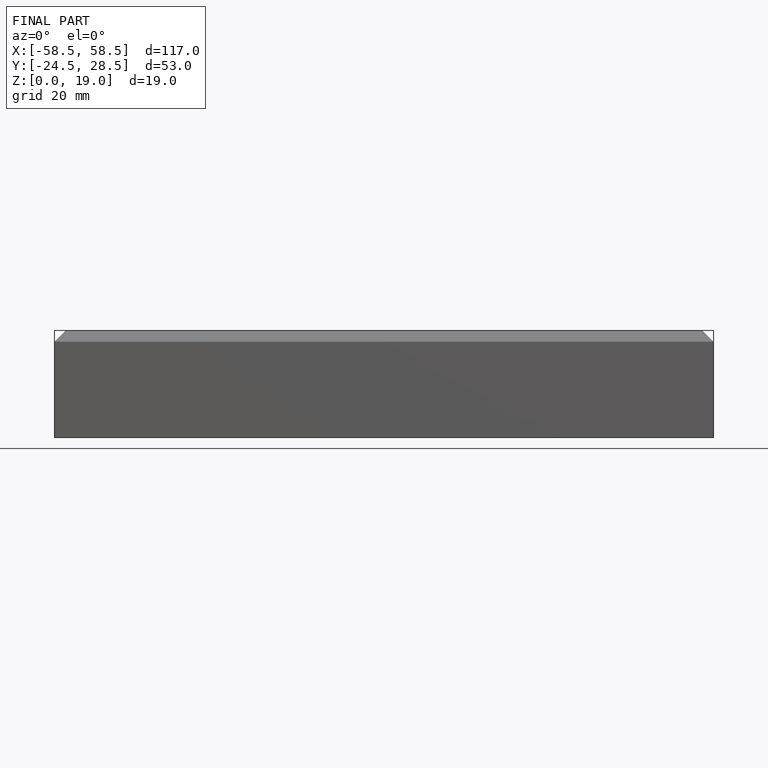
[diagram: finished part — front view with bounding-box wireframe]
